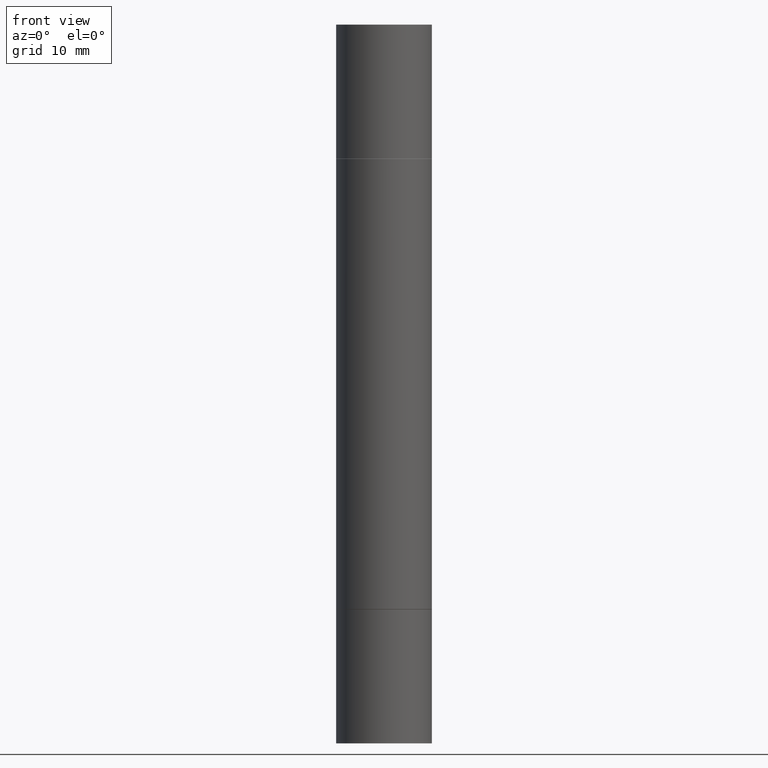
[diagram: clean part render]
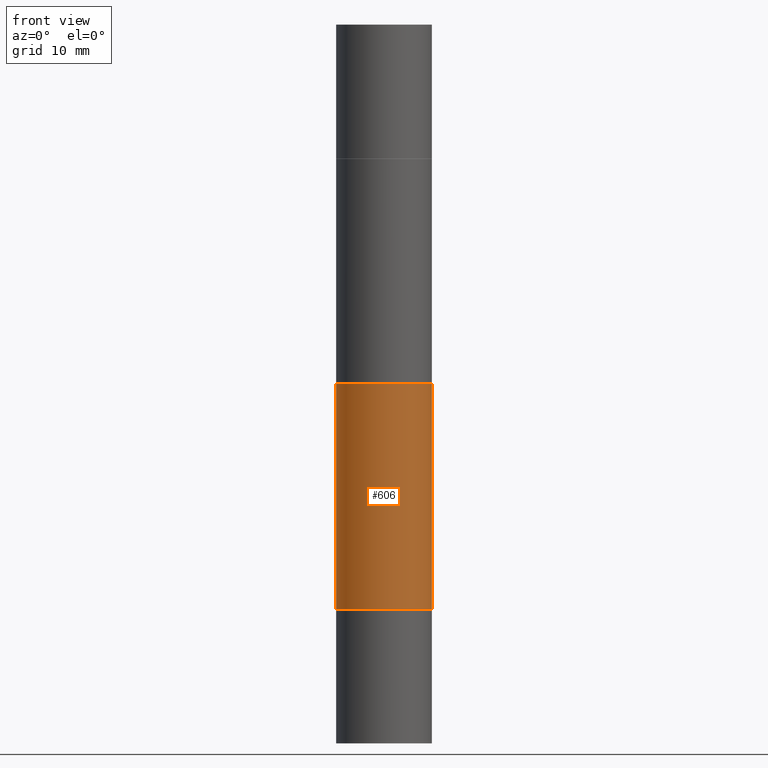
[diagram: same view with one face highlighted and labeled with its STEP entity id]
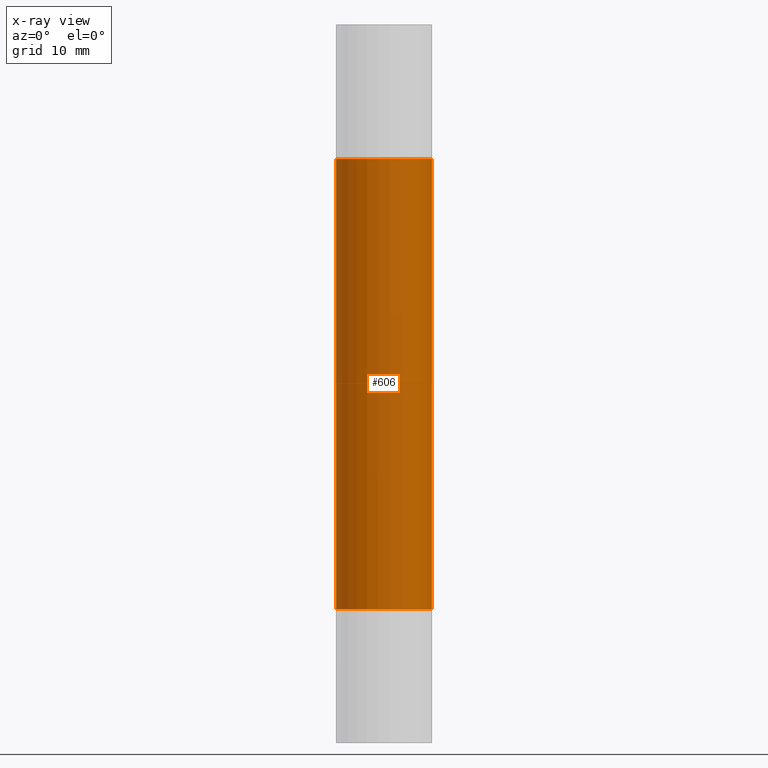
[diagram: x-ray of the same camera — body ghosted, the highlighted face saturated]
A machine part, front view. The second image highlights one B-rep face of the part: STEP entity #606.
The next image is the same camera in x-ray: the body ghosted, the highlighted face saturated — about 0% of this face is hidden behind the body in this view.
In plain terms, the highlighted cylindrical surface (partial cylindrical patch) has radius 5 mm, axis along (-0, -0, -1).
Its self-contained STEP definition (entity closure, byte-faithful):
#42 = FACE_OUTER_BOUND ( 'NONE', #307, .T. ) ;
#56 = LINE ( 'NONE', #530, #177 ) ;
#57 = VERTEX_POINT ( 'NONE', #387 ) ;
#69 = ORIENTED_EDGE ( 'NONE', *, *, #313, .T. ) ;
#74 = CARTESIAN_POINT ( 'NONE',  ( -0.1968500000000000250, -5.762046994505618475E-16, -0.5521999999999996911 ) ) ;
#91 = AXIS2_PLACEMENT_3D ( 'NONE', #365, #565, #101 ) ;
#101 = DIRECTION ( 'NONE',  ( 1.000000000000000000, -6.982962677686264344E-15, 0.000000000000000000 ) ) ;
#116 = ORIENTED_EDGE ( 'NONE', *, *, #167, .F. ) ;
#125 = AXIS2_PLACEMENT_3D ( 'NONE', #623, #413, #213 ) ;
#146 = LINE ( 'NONE', #405, #569 ) ;
#167 = EDGE_CURVE ( 'NONE', #650, #57, #146, .T. ) ;
#177 = VECTOR ( 'NONE', #333, 39.37007874015748143 ) ;
#193 = DIRECTION ( 'NONE',  ( -2.445468806185136597E-29, 3.491481338843145583E-15, 1.000000000000000000 ) ) ;
#210 = CARTESIAN_POINT ( 'NONE',  ( -0.1968500000000000250, -3.804334017806689102E-15, -2.400599999999999401 ) ) ;
#213 = DIRECTION ( 'NONE',  ( 1.000000000000000000, -6.982962677686267499E-15, 0.000000000000000000 ) ) ;
#216 = CARTESIAN_POINT ( 'NONE',  ( 0.1968500000000000250, -3.301289933414429871E-15, -0.5521999999999996911 ) ) ;
#250 = AXIS2_PLACEMENT_3D ( 'NONE', #552, #193, #391 ) ;
#251 = CYLINDRICAL_SURFACE ( 'NONE', #91, 0.1968499999999998307 ) ;
#307 = EDGE_LOOP ( 'NONE', ( #455, #69, #633, #116 ) ) ;
#313 = EDGE_CURVE ( 'NONE', #420, #340, #56, .T. ) ;
#333 = DIRECTION ( 'NONE',  ( -2.445468806185136877E-29, -3.492890411551753071E-15, -1.000000000000000000 ) ) ;
#340 = VERTEX_POINT ( 'NONE', #210 ) ;
#365 = CARTESIAN_POINT ( 'NONE',  ( 0.000000000000000000, -1.031172645228302408E-14, -2.952799999999998981 ) ) ;
#387 = CARTESIAN_POINT ( 'NONE',  ( 0.1968500000000000250, -9.756246305129394287E-15, -2.400599999999999401 ) ) ;
#391 = DIRECTION ( 'NONE',  ( 1.000000000000000000, -6.982962677686262766E-15, 0.000000000000000000 ) ) ;
#405 = CARTESIAN_POINT ( 'NONE',  ( 0.1968499999999998307, -1.168632265538556411E-14, -2.952799999999998981 ) ) ;
#413 = DIRECTION ( 'NONE',  ( 2.445468806185136597E-29, 3.492890411551752677E-15, 1.000000000000000000 ) ) ;
#420 = VERTEX_POINT ( 'NONE', #74 ) ;
#445 = CIRCLE ( 'NONE', #125, 0.1968500000000000250 ) ;
#455 = ORIENTED_EDGE ( 'NONE', *, *, #594, .F. ) ;
#530 = CARTESIAN_POINT ( 'NONE',  ( -0.1968499999999998307, -8.961237421421701017E-15, -2.952799999999998981 ) ) ;
#539 = EDGE_CURVE ( 'NONE', #340, #57, #595, .T. ) ;
#552 = CARTESIAN_POINT ( 'NONE',  ( 5.870592416128037625E-29, -8.381650102026854256E-15, -2.400599999999999401 ) ) ;
#565 = DIRECTION ( 'NONE',  ( -2.445468806185136597E-29, -3.492890411551752677E-15, -1.000000000000000000 ) ) ;
#569 = VECTOR ( 'NONE', #571, 39.37007874015748143 ) ;
#571 = DIRECTION ( 'NONE',  ( -2.445468806185136877E-29, -3.492890411551753071E-15, -1.000000000000000000 ) ) ;
#594 = EDGE_CURVE ( 'NONE', #420, #650, #445, .T. ) ;
#595 = CIRCLE ( 'NONE', #250, 0.1968500000000000250 ) ;
#606 = ADVANCED_FACE ( 'NONE', ( #42 ), #251, .T. ) ;
#623 = CARTESIAN_POINT ( 'NONE',  ( 5.870592416128037625E-29, -1.926693730311889446E-15, -0.5521999999999996911 ) ) ;
#633 = ORIENTED_EDGE ( 'NONE', *, *, #539, .T. ) ;
#650 = VERTEX_POINT ( 'NONE', #216 ) ;